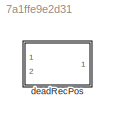
MODEL slx_7a1ffe9e2d31
KIND library
CONFIG AbsTol = auto
CONFIG EnableMultiTasking = off
CONFIG FixedStep = auto
CONFIG MaxStep = auto
CONFIG MinStep = auto
CONFIG RelTol = 1e-3
CONFIG SampleTimeConstraint = Unconstrained
CONFIG SolverName = VariableStepAuto
CONFIG StartTime = 0.0
CONFIG StopTime = 10.0
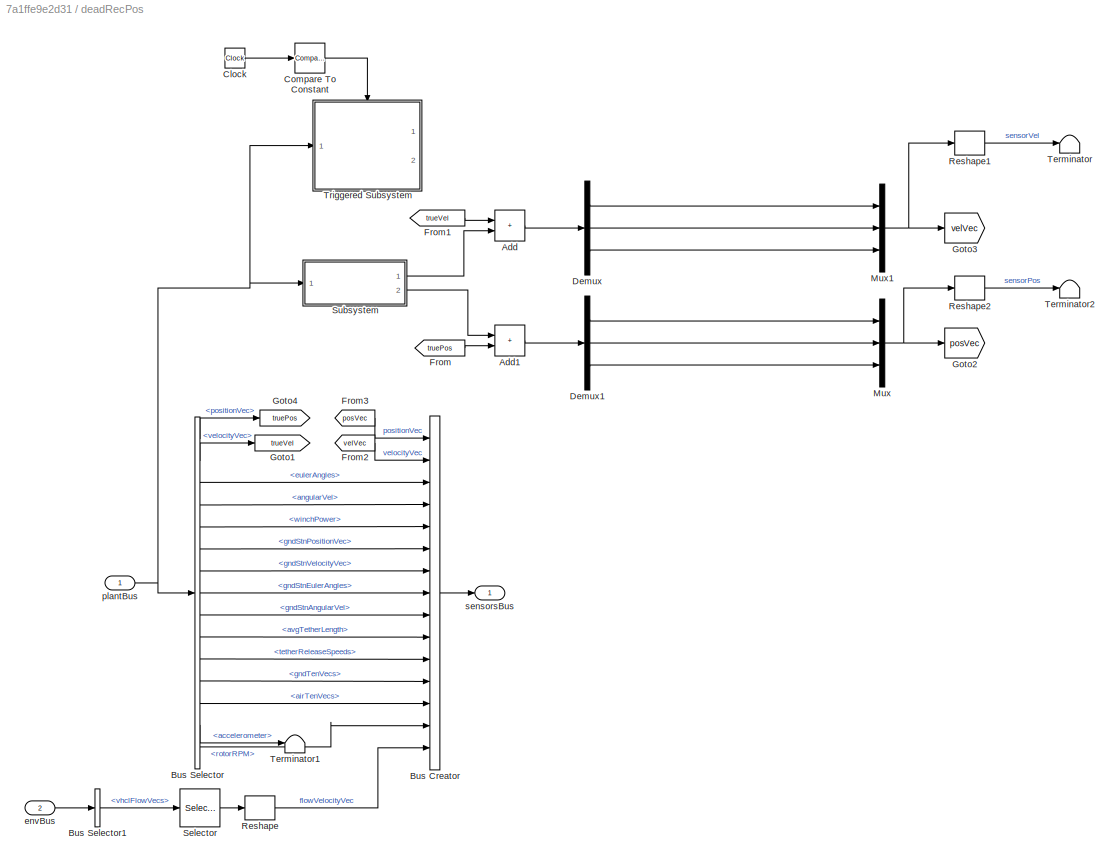
BLOCK [SubSystem] deadRecPos
  InitFcn = initializeBussesFromBlock(gcb)
  LoadFcn = initializeBussesFromBlock(gcb)
  Ports = [2, 1]
  RequestExecContextInheritance = off
  StartFcn = initializeBussesFromBlock(gcb)
BLOCK [Sum] deadRecPos/Add
  IconShape = rectangular
  Ports = [2, 1]
BLOCK [Sum] deadRecPos/Add1
  IconShape = rectangular
  Ports = [2, 1]
BLOCK [BusCreator] deadRecPos/Bus Creator
  DisplayOption = bar
  InheritFromInputs = on
  Inputs = 15
  NonVirtualBus = on
  OutDataTypeStr = Bus: sensorsBus
  Ports = [15, 1]
BLOCK [BusSelector] deadRecPos/Bus Selector
  OutputSignals = positionVec,velocityVec,eulerAngles,angularVel,winchPower,gndStnPositionVec,gndStnVelocityVec,gndStnEulerAngles,gndStnAngularVel,avgTetherLength,tetherReleaseSpeeds,gndTenVecs,airTenVecs,accelerometer,rotorRPM
  Ports = [1, 15]
BLOCK [BusSelector] deadRecPos/Bus Selector1
  OutputSignals = vhclFlowVecs
  Ports = [1, 1]
BLOCK [Clock] deadRecPos/Clock
BLOCK [Reference] deadRecPos/Compare To Constant  REF=simulink/Logic and Bit
Operations/Compare
To Constant
  Ports = [1, 1]
  SourceBlock = simulink/Logic and Bit\nOperations/Compare\nTo Constant
  SourceProductBaseCode = SL
  SourceType = Compare To Constant
BLOCK [Demux] deadRecPos/Demux
  Outputs = 3
  Ports = [1, 3]
BLOCK [Demux] deadRecPos/Demux1
  Outputs = 3
  Ports = [1, 3]
BLOCK [From] deadRecPos/From
  GotoTag = truePos
BLOCK [From] deadRecPos/From1
  GotoTag = trueVel
BLOCK [From] deadRecPos/From2
  GotoTag = velVec
BLOCK [From] deadRecPos/From3
  GotoTag = posVec
BLOCK [Goto] deadRecPos/Goto1
  GotoTag = trueVel
BLOCK [Goto] deadRecPos/Goto2
  GotoTag = posVec
BLOCK [Goto] deadRecPos/Goto3
  GotoTag = velVec
BLOCK [Goto] deadRecPos/Goto4
  GotoTag = truePos
BLOCK [Mux] deadRecPos/Mux
  DisplayOption = bar
  Inputs = 3
  Ports = [3, 1]
BLOCK [Mux] deadRecPos/Mux1
  DisplayOption = bar
  Inputs = 3
  Ports = [3, 1]
BLOCK [Reshape] deadRecPos/Reshape
  OutputDimensionality = Column vector (2-D)
  Ports = [1, 1]
BLOCK [Reshape] deadRecPos/Reshape1
  OutputDimensionality = Column vector (2-D)
  Ports = [1, 1]
BLOCK [Reshape] deadRecPos/Reshape2
  OutputDimensionality = Column vector (2-D)
  Ports = [1, 1]
BLOCK [Selector] deadRecPos/Selector
  IndexOptions = Select all,Index vector (dialog)
  Indices = [1 3],1
  InputPortWidth = 3
  NumberOfDimensions = 2
  OutputSizes = 1,1
  Ports = [1, 1]
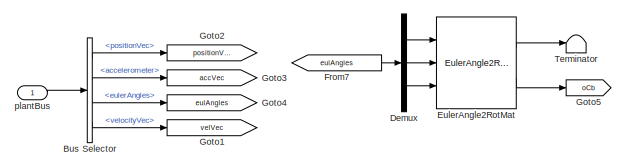
[diagram: deadRecPos/Subsystem - part 1/3, top center region]
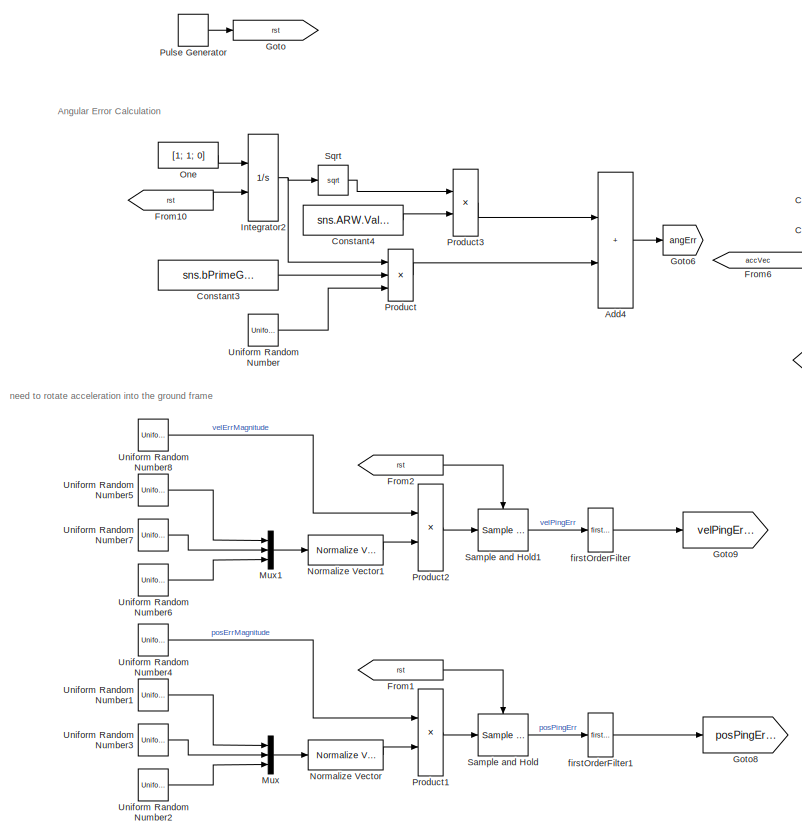
[diagram: deadRecPos/Subsystem - part 2/3, bottom left region]
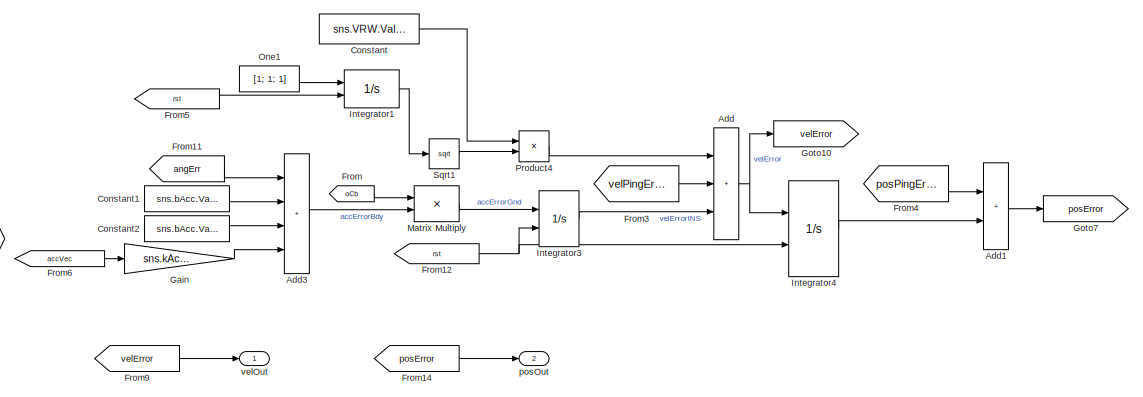
[diagram: deadRecPos/Subsystem - part 3/3, middle right region]
BLOCK [SubSystem] deadRecPos/Subsystem
  Ports = [1, 2]
  RequestExecContextInheritance = off
BLOCK [Sum] deadRecPos/Subsystem/Add
  IconShape = rectangular
  Inputs = +++
  Ports = [3, 1]
BLOCK [Sum] deadRecPos/Subsystem/Add1
  IconShape = rectangular
  Ports = [2, 1]
BLOCK [Sum] deadRecPos/Subsystem/Add3
  IconShape = rectangular
  Inputs = ++++
  Ports = [4, 1]
BLOCK [Sum] deadRecPos/Subsystem/Add4
  IconShape = rectangular
  Ports = [2, 1]
BLOCK [BusSelector] deadRecPos/Subsystem/Bus Selector
  OutputSignals = positionVec,accelerometer,eulerAngles,velocityVec
  Ports = [1, 4]
BLOCK [Constant] deadRecPos/Subsystem/Constant
  Value = sns.VRW.Value*3
BLOCK [Constant] deadRecPos/Subsystem/Constant1
  Value = sns.bAcc.Value
BLOCK [Constant] deadRecPos/Subsystem/Constant2
  Value = sns.bAcc.Value
BLOCK [Constant] deadRecPos/Subsystem/Constant3
  Value = sns.bPrimeGyro.Value
BLOCK [Constant] deadRecPos/Subsystem/Constant4
  Value = sns.ARW.Value*pi/180
BLOCK [Demux] deadRecPos/Subsystem/Demux
  Outputs = 3
  Ports = [1, 3]
BLOCK [Reference] deadRecPos/Subsystem/EulerAngle2RotMat  REF=eulAng2RotMat_ul/EulerAngle2RotMat
  Ports = [3, 2]
  SourceBlock = eulAng2RotMat_ul/EulerAngle2RotMat
  SourceType = SubSystem
BLOCK [From] deadRecPos/Subsystem/From
  GotoTag = oCb
BLOCK [From] deadRecPos/Subsystem/From1
  GotoTag = rst
BLOCK [From] deadRecPos/Subsystem/From10
  GotoTag = rst
BLOCK [From] deadRecPos/Subsystem/From11
  GotoTag = angErr
BLOCK [From] deadRecPos/Subsystem/From12
  GotoTag = rst
BLOCK [From] deadRecPos/Subsystem/From14
  GotoTag = posError
BLOCK [From] deadRecPos/Subsystem/From2
  GotoTag = rst
BLOCK [From] deadRecPos/Subsystem/From3
  GotoTag = velPingError
BLOCK [From] deadRecPos/Subsystem/From4
  GotoTag = posPingError
BLOCK [From] deadRecPos/Subsystem/From5
  GotoTag = rst
BLOCK [From] deadRecPos/Subsystem/From6
  GotoTag = accVec
BLOCK [From] deadRecPos/Subsystem/From7
  GotoTag = eulAngles
BLOCK [From] deadRecPos/Subsystem/From9
  GotoTag = velError
BLOCK [Gain] deadRecPos/Subsystem/Gain
  Gain = sns.kAcc.Value
BLOCK [Goto] deadRecPos/Subsystem/Goto
  GotoTag = rst
BLOCK [Goto] deadRecPos/Subsystem/Goto1
  GotoTag = velVec
BLOCK [Goto] deadRecPos/Subsystem/Goto10
  GotoTag = velError
BLOCK [Goto] deadRecPos/Subsystem/Goto2
  GotoTag = positionVec
BLOCK [Goto] deadRecPos/Subsystem/Goto3
  GotoTag = accVec
BLOCK [Goto] deadRecPos/Subsystem/Goto4
  GotoTag = eulAngles
BLOCK [Goto] deadRecPos/Subsystem/Goto5
  GotoTag = oCb
BLOCK [Goto] deadRecPos/Subsystem/Goto6
  GotoTag = angErr
BLOCK [Goto] deadRecPos/Subsystem/Goto7
  GotoTag = posError
BLOCK [Goto] deadRecPos/Subsystem/Goto8
  GotoTag = posPingError
BLOCK [Goto] deadRecPos/Subsystem/Goto9
  GotoTag = velPingError
BLOCK [Integrator] deadRecPos/Subsystem/Integrator1
  ExternalReset = rising
  Ports = [2, 1]
BLOCK [Integrator] deadRecPos/Subsystem/Integrator2
  ExternalReset = rising
  Ports = [2, 1]
BLOCK [Integrator] deadRecPos/Subsystem/Integrator3
  ExternalReset = rising
  Ports = [2, 1]
BLOCK [Integrator] deadRecPos/Subsystem/Integrator4
  ExternalReset = rising
  Ports = [2, 1]
BLOCK [Product] deadRecPos/Subsystem/Matrix Multiply
  Multiplication = Matrix(*)
  Ports = [2, 1]
BLOCK [Mux] deadRecPos/Subsystem/Mux
  DisplayOption = bar
  Inputs = 3
  Ports = [3, 1]
BLOCK [Mux] deadRecPos/Subsystem/Mux1
  DisplayOption = bar
  Inputs = 3
  Ports = [3, 1]
BLOCK [Reference] deadRecPos/Subsystem/Normalize Vector  REF=vrlib/Utilities/Normalize Vector
  Ports = [1, 1]
  SourceBlock = vrlib/Utilities/Normalize Vector
  SourceProductBaseCode = SL
  SourceType = Normalize Vector
BLOCK [Reference] deadRecPos/Subsystem/Normalize Vector1  REF=vrlib/Utilities/Normalize Vector
  Ports = [1, 1]
  SourceBlock = vrlib/Utilities/Normalize Vector
  SourceProductBaseCode = SL
  SourceType = Normalize Vector
BLOCK [Constant] deadRecPos/Subsystem/One
  OutDataTypeStr = Inherit: Inherit via back propagation
  Value = [1; 1; 0]
BLOCK [Constant] deadRecPos/Subsystem/One1
  OutDataTypeStr = Inherit: Inherit via back propagation
  Value = [1; 1; 1]
BLOCK [Product] deadRecPos/Subsystem/Product
  Inputs = 3
  Ports = [3, 1]
BLOCK [Product] deadRecPos/Subsystem/Product1
  Ports = [2, 1]
BLOCK [Product] deadRecPos/Subsystem/Product2
  Ports = [2, 1]
BLOCK [Product] deadRecPos/Subsystem/Product3
  Ports = [2, 1]
BLOCK [Product] deadRecPos/Subsystem/Product4
  Ports = [2, 1]
BLOCK [DiscretePulseGenerator] deadRecPos/Subsystem/Pulse Generator
  Period = (sns.gndTruthFreq.Value/(2*pi))^-1
  Ports = [0, 1]
  PulseType = Time based
  PulseWidth = 5
BLOCK [Reference] deadRecPos/Subsystem/Sample and Hold  REF=dspsigops/Sample
and Hold
  Ports = [1, 1, 0, 1]
  SourceBlock = dspsigops/Sample\nand Hold
  SourceProductBaseCode = DS
  SourceType = Sample and Hold
BLOCK [Reference] deadRecPos/Subsystem/Sample and Hold1  REF=dspsigops/Sample
and Hold
  Ports = [1, 1, 0, 1]
  SourceBlock = dspsigops/Sample\nand Hold
  SourceProductBaseCode = DS
  SourceType = Sample and Hold
BLOCK [Sqrt] deadRecPos/Subsystem/Sqrt
BLOCK [Sqrt] deadRecPos/Subsystem/Sqrt1
BLOCK [Terminator] deadRecPos/Subsystem/Terminator
BLOCK [UniformRandomNumber] deadRecPos/Subsystem/Uniform Random Number
  Minimum = 0
BLOCK [UniformRandomNumber] deadRecPos/Subsystem/Uniform Random Number1
BLOCK [UniformRandomNumber] deadRecPos/Subsystem/Uniform Random Number2
  Seed = 78654
BLOCK [UniformRandomNumber] deadRecPos/Subsystem/Uniform Random Number3
  Seed = 2459
BLOCK [UniformRandomNumber] deadRecPos/Subsystem/Uniform Random Number4
  Maximum = sns.posErrMag.Value
  Minimum = 0
BLOCK [UniformRandomNumber] deadRecPos/Subsystem/Uniform Random Number5
  Seed = 1954
BLOCK [UniformRandomNumber] deadRecPos/Subsystem/Uniform Random Number6
  Seed = 3
BLOCK [UniformRandomNumber] deadRecPos/Subsystem/Uniform Random Number7
  Seed = 549
BLOCK [UniformRandomNumber] deadRecPos/Subsystem/Uniform Random Number8
  Maximum = sns.velErrMag.Value
  Minimum = 0
BLOCK [Reference] deadRecPos/Subsystem/firstOrderFilter  REF=firstOrderFilter_ul/firstOrderFilter
  Ports = [1, 1]
  SourceBlock = firstOrderFilter_ul/firstOrderFilter
BLOCK [Reference] deadRecPos/Subsystem/firstOrderFilter1  REF=firstOrderFilter_ul/firstOrderFilter
  Ports = [1, 1]
  SourceBlock = firstOrderFilter_ul/firstOrderFilter
BLOCK [Inport] deadRecPos/Subsystem/plantBus
BLOCK [Outport] deadRecPos/Subsystem/posOut
  Port = 2
BLOCK [Outport] deadRecPos/Subsystem/velOut
BLOCK [Terminator] deadRecPos/Terminator
BLOCK [Terminator] deadRecPos/Terminator1
BLOCK [Terminator] deadRecPos/Terminator2
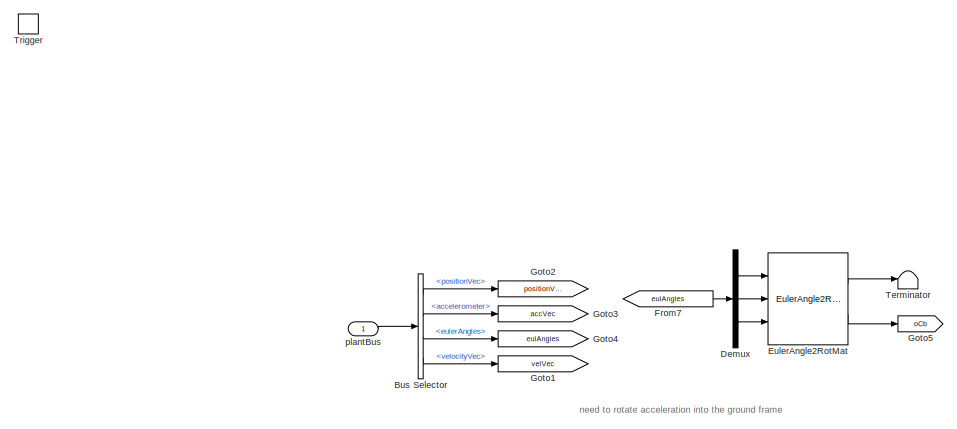
[diagram: deadRecPos/Triggered Subsystem - part 1/3, top left region]
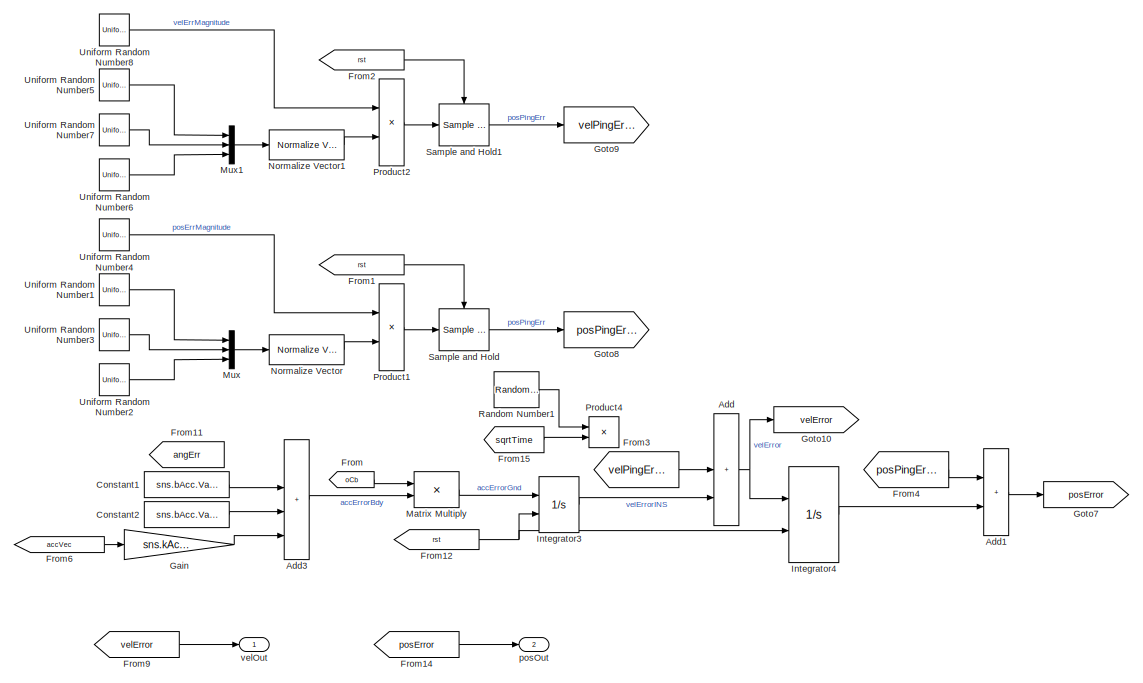
[diagram: deadRecPos/Triggered Subsystem - part 2/3, bottom right region]
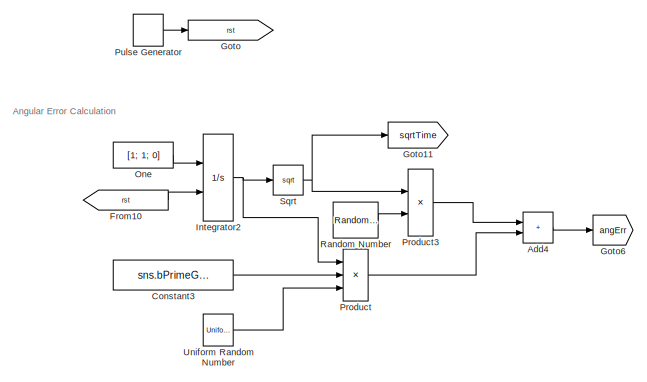
[diagram: deadRecPos/Triggered Subsystem - part 3/3, bottom left region]
BLOCK [SubSystem] deadRecPos/Triggered Subsystem
  Commented = on
  Ports = [1, 2, 0, 1]
  RequestExecContextInheritance = off
  TreatAsAtomicUnit = on
BLOCK [Sum] deadRecPos/Triggered Subsystem/Add
  IconShape = rectangular
  Inputs = +++
  Ports = [3, 1]
BLOCK [Sum] deadRecPos/Triggered Subsystem/Add1
  IconShape = rectangular
  Ports = [2, 1]
BLOCK [Sum] deadRecPos/Triggered Subsystem/Add3
  IconShape = rectangular
  Inputs = ++++
  Ports = [4, 1]
BLOCK [Sum] deadRecPos/Triggered Subsystem/Add4
  IconShape = rectangular
  Ports = [2, 1]
BLOCK [BusSelector] deadRecPos/Triggered Subsystem/Bus Selector
  OutputSignals = positionVec,accelerometer,eulerAngles,velocityVec
  Ports = [1, 4]
BLOCK [Constant] deadRecPos/Triggered Subsystem/Constant1
  Value = sns.bAcc.Value
BLOCK [Constant] deadRecPos/Triggered Subsystem/Constant2
  Value = sns.bAcc.Value
BLOCK [Constant] deadRecPos/Triggered Subsystem/Constant3
  Value = sns.bPrimeGyro.Value
BLOCK [Demux] deadRecPos/Triggered Subsystem/Demux
  Outputs = 3
  Ports = [1, 3]
BLOCK [Reference] deadRecPos/Triggered Subsystem/EulerAngle2RotMat  REF=eulAng2RotMat_ul/EulerAngle2RotMat
  Ports = [3, 2]
  SourceBlock = eulAng2RotMat_ul/EulerAngle2RotMat
  SourceType = SubSystem
BLOCK [From] deadRecPos/Triggered Subsystem/From
  GotoTag = oCb
BLOCK [From] deadRecPos/Triggered Subsystem/From1
  GotoTag = rst
BLOCK [From] deadRecPos/Triggered Subsystem/From10
  GotoTag = rst
BLOCK [From] deadRecPos/Triggered Subsystem/From11
  GotoTag = angErr
BLOCK [From] deadRecPos/Triggered Subsystem/From12
  GotoTag = rst
BLOCK [From] deadRecPos/Triggered Subsystem/From14
  GotoTag = posError
BLOCK [From] deadRecPos/Triggered Subsystem/From15
  GotoTag = sqrtTime
BLOCK [From] deadRecPos/Triggered Subsystem/From2
  GotoTag = rst
BLOCK [From] deadRecPos/Triggered Subsystem/From3
  GotoTag = velPingError
BLOCK [From] deadRecPos/Triggered Subsystem/From4
  GotoTag = posPingError
BLOCK [From] deadRecPos/Triggered Subsystem/From6
  GotoTag = accVec
BLOCK [From] deadRecPos/Triggered Subsystem/From7
  GotoTag = eulAngles
BLOCK [From] deadRecPos/Triggered Subsystem/From9
  GotoTag = velError
BLOCK [Gain] deadRecPos/Triggered Subsystem/Gain
  Gain = sns.kAcc.Value
BLOCK [Goto] deadRecPos/Triggered Subsystem/Goto
  GotoTag = rst
BLOCK [Goto] deadRecPos/Triggered Subsystem/Goto1
  GotoTag = velVec
BLOCK [Goto] deadRecPos/Triggered Subsystem/Goto10
  GotoTag = velError
BLOCK [Goto] deadRecPos/Triggered Subsystem/Goto11
  GotoTag = sqrtTime
BLOCK [Goto] deadRecPos/Triggered Subsystem/Goto2
  GotoTag = positionVec
BLOCK [Goto] deadRecPos/Triggered Subsystem/Goto3
  GotoTag = accVec
BLOCK [Goto] deadRecPos/Triggered Subsystem/Goto4
  GotoTag = eulAngles
BLOCK [Goto] deadRecPos/Triggered Subsystem/Goto5
  GotoTag = oCb
BLOCK [Goto] deadRecPos/Triggered Subsystem/Goto6
  GotoTag = angErr
BLOCK [Goto] deadRecPos/Triggered Subsystem/Goto7
  GotoTag = posError
BLOCK [Goto] deadRecPos/Triggered Subsystem/Goto8
  GotoTag = posPingError
BLOCK [Goto] deadRecPos/Triggered Subsystem/Goto9
  GotoTag = velPingError
BLOCK [Integrator] deadRecPos/Triggered Subsystem/Integrator2
  ExternalReset = rising
  Ports = [2, 1]
BLOCK [Integrator] deadRecPos/Triggered Subsystem/Integrator3
  ExternalReset = rising
  Ports = [2, 1]
BLOCK [Integrator] deadRecPos/Triggered Subsystem/Integrator4
  ExternalReset = rising
  Ports = [2, 1]
BLOCK [Product] deadRecPos/Triggered Subsystem/Matrix Multiply
  Multiplication = Matrix(*)
  Ports = [2, 1]
BLOCK [Mux] deadRecPos/Triggered Subsystem/Mux
  DisplayOption = bar
  Inputs = 3
  Ports = [3, 1]
BLOCK [Mux] deadRecPos/Triggered Subsystem/Mux1
  DisplayOption = bar
  Inputs = 3
  Ports = [3, 1]
BLOCK [Reference] deadRecPos/Triggered Subsystem/Normalize Vector  REF=vrlib/Utilities/Normalize Vector
  Ports = [1, 1]
  SourceBlock = vrlib/Utilities/Normalize Vector
  SourceProductBaseCode = SL
  SourceType = Normalize Vector
BLOCK [Reference] deadRecPos/Triggered Subsystem/Normalize Vector1  REF=vrlib/Utilities/Normalize Vector
  Ports = [1, 1]
  SourceBlock = vrlib/Utilities/Normalize Vector
  SourceProductBaseCode = SL
  SourceType = Normalize Vector
BLOCK [Constant] deadRecPos/Triggered Subsystem/One
  OutDataTypeStr = Inherit: Inherit via back propagation
  Value = [1; 1; 0]
BLOCK [Product] deadRecPos/Triggered Subsystem/Product
  Inputs = 3
  Ports = [3, 1]
BLOCK [Product] deadRecPos/Triggered Subsystem/Product1
  Ports = [2, 1]
BLOCK [Product] deadRecPos/Triggered Subsystem/Product2
  Ports = [2, 1]
BLOCK [Product] deadRecPos/Triggered Subsystem/Product3
  Ports = [2, 1]
BLOCK [Product] deadRecPos/Triggered Subsystem/Product4
  Ports = [2, 1]
BLOCK [DiscretePulseGenerator] deadRecPos/Triggered Subsystem/Pulse Generator
  Period = (sns.gndTruthFreq.Value/(2*pi))^-1
  Ports = [0, 1]
  PulseType = Time based
  PulseWidth = 5
BLOCK [RandomNumber] deadRecPos/Triggered Subsystem/Random Number
  Variance = (sns.ARW.Value*sqrt(sns.gndTruthFreq.Value/(2*pi)))^2
BLOCK [RandomNumber] deadRecPos/Triggered Subsystem/Random Number1
  Variance = (sns.VRW.Value*sqrt(sns.gndTruthFreq.Value/(2*pi)))^2
BLOCK [Reference] deadRecPos/Triggered Subsystem/Sample and Hold  REF=dspsigops/Sample
and Hold
  Ports = [1, 1, 0, 1]
  SourceBlock = dspsigops/Sample\nand Hold
  SourceProductBaseCode = DS
  SourceType = Sample and Hold
BLOCK [Reference] deadRecPos/Triggered Subsystem/Sample and Hold1  REF=dspsigops/Sample
and Hold
  Ports = [1, 1, 0, 1]
  SourceBlock = dspsigops/Sample\nand Hold
  SourceProductBaseCode = DS
  SourceType = Sample and Hold
BLOCK [Sqrt] deadRecPos/Triggered Subsystem/Sqrt
BLOCK [Terminator] deadRecPos/Triggered Subsystem/Terminator
BLOCK [TriggerPort] deadRecPos/Triggered Subsystem/Trigger
  Ports = []
  StatesWhenEnabling = held
  VariantControl = Variant
BLOCK [UniformRandomNumber] deadRecPos/Triggered Subsystem/Uniform Random Number
  Minimum = 0
BLOCK [UniformRandomNumber] deadRecPos/Triggered Subsystem/Uniform Random Number1
  Minimum = 0
BLOCK [UniformRandomNumber] deadRecPos/Triggered Subsystem/Uniform Random Number2
  Minimum = 0
  Seed = 78654
BLOCK [UniformRandomNumber] deadRecPos/Triggered Subsystem/Uniform Random Number3
  Minimum = 0
  Seed = 2459
BLOCK [UniformRandomNumber] deadRecPos/Triggered Subsystem/Uniform Random Number4
  Maximum = sns.posErrMag.Value
  Minimum = 0
BLOCK [UniformRandomNumber] deadRecPos/Triggered Subsystem/Uniform Random Number5
  Minimum = 0
  Seed = 1954
BLOCK [UniformRandomNumber] deadRecPos/Triggered Subsystem/Uniform Random Number6
  Minimum = 0
  Seed = 3
BLOCK [UniformRandomNumber] deadRecPos/Triggered Subsystem/Uniform Random Number7
  Minimum = 0
  Seed = 549
BLOCK [UniformRandomNumber] deadRecPos/Triggered Subsystem/Uniform Random Number8
  Maximum = sns.velErrMag.Value
  Minimum = 0
BLOCK [Inport] deadRecPos/Triggered Subsystem/plantBus
BLOCK [Outport] deadRecPos/Triggered Subsystem/posOut
  Port = 2
BLOCK [Outport] deadRecPos/Triggered Subsystem/velOut
BLOCK [Inport] deadRecPos/envBus
  OutDataTypeStr = Bus: envBus
  Port = 2
BLOCK [Inport] deadRecPos/plantBus
  OutDataTypeStr = Bus: plantBus
BLOCK [Outport] deadRecPos/sensorsBus
  OutDataTypeStr = Bus: sensorsBus
  VectorParamsAs1DForOutWhenUnconnected = off
ANNOTATION deadRecPos/Subsystem: Angular Error Calculation
ANNOTATION deadRecPos/Subsystem: need to rotate acceleration into the ground frame
ANNOTATION deadRecPos/Triggered Subsystem: Angular Error Calculation
ANNOTATION deadRecPos/Triggered Subsystem: need to rotate acceleration into the ground frame
LINE deadRecPos/Add1:1 -> deadRecPos/Demux1:1
LINE deadRecPos/Add:1 -> deadRecPos/Demux:1
LINE deadRecPos/Bus Creator:1 -> deadRecPos/sensorsBus:1
LINE deadRecPos/Bus Selector1:1 -> deadRecPos/Selector:1
LINE deadRecPos/Bus Selector:1 -> deadRecPos/Goto4:1
LINE deadRecPos/Bus Selector:10 -> deadRecPos/Bus Creator:10
LINE deadRecPos/Bus Selector:11 -> deadRecPos/Bus Creator:11
LINE deadRecPos/Bus Selector:12 -> deadRecPos/Bus Creator:12
LINE deadRecPos/Bus Selector:13 -> deadRecPos/Bus Creator:13
LINE deadRecPos/Bus Selector:14 -> deadRecPos/Terminator1:1
LINE deadRecPos/Bus Selector:15 -> deadRecPos/Bus Creator:14
LINE deadRecPos/Bus Selector:2 -> deadRecPos/Goto1:1
LINE deadRecPos/Bus Selector:3 -> deadRecPos/Bus Creator:3
LINE deadRecPos/Bus Selector:4 -> deadRecPos/Bus Creator:4
LINE deadRecPos/Bus Selector:5 -> deadRecPos/Bus Creator:5
LINE deadRecPos/Bus Selector:6 -> deadRecPos/Bus Creator:6
LINE deadRecPos/Bus Selector:7 -> deadRecPos/Bus Creator:7
LINE deadRecPos/Bus Selector:8 -> deadRecPos/Bus Creator:8
LINE deadRecPos/Bus Selector:9 -> deadRecPos/Bus Creator:9
LINE deadRecPos/Clock:1 -> deadRecPos/Compare To Constant:1
LINE deadRecPos/Compare To Constant:1 -> deadRecPos/Triggered Subsystem:trigger
LINE deadRecPos/Demux1:1 -> deadRecPos/Mux:1
LINE deadRecPos/Demux1:2 -> deadRecPos/Mux:2
LINE deadRecPos/Demux1:3 -> deadRecPos/Mux:3
LINE deadRecPos/Demux:1 -> deadRecPos/Mux1:1
LINE deadRecPos/Demux:2 -> deadRecPos/Mux1:2
LINE deadRecPos/Demux:3 -> deadRecPos/Mux1:3
LINE deadRecPos/From1:1 -> deadRecPos/Add:1
LINE deadRecPos/From2:1 -> deadRecPos/Bus Creator:2
LINE deadRecPos/From3:1 -> deadRecPos/Bus Creator:1
LINE deadRecPos/From:1 -> deadRecPos/Add1:2
NET deadRecPos/Mux1:1 -> deadRecPos/Goto3:1, deadRecPos/Reshape1:1
NET deadRecPos/Mux:1 -> deadRecPos/Goto2:1, deadRecPos/Reshape2:1
LINE deadRecPos/Reshape1:1 -> deadRecPos/Terminator:1
LINE deadRecPos/Reshape2:1 -> deadRecPos/Terminator2:1
LINE deadRecPos/Reshape:1 -> deadRecPos/Bus Creator:15
LINE deadRecPos/Selector:1 -> deadRecPos/Reshape:1
LINE deadRecPos/Subsystem/Add1:1 -> deadRecPos/Subsystem/Goto7:1
LINE deadRecPos/Subsystem/Add3:1 -> deadRecPos/Subsystem/Matrix Multiply:2
LINE deadRecPos/Subsystem/Add4:1 -> deadRecPos/Subsystem/Goto6:1
NET deadRecPos/Subsystem/Add:1 -> deadRecPos/Subsystem/Goto10:1, deadRecPos/Subsystem/Integrator4:1
LINE deadRecPos/Subsystem/Bus Selector:1 -> deadRecPos/Subsystem/Goto2:1
LINE deadRecPos/Subsystem/Bus Selector:2 -> deadRecPos/Subsystem/Goto3:1
LINE deadRecPos/Subsystem/Bus Selector:3 -> deadRecPos/Subsystem/Goto4:1
LINE deadRecPos/Subsystem/Bus Selector:4 -> deadRecPos/Subsystem/Goto1:1
LINE deadRecPos/Subsystem/Constant1:1 -> deadRecPos/Subsystem/Add3:2
LINE deadRecPos/Subsystem/Constant2:1 -> deadRecPos/Subsystem/Add3:3
LINE deadRecPos/Subsystem/Constant3:1 -> deadRecPos/Subsystem/Product:2
LINE deadRecPos/Subsystem/Constant4:1 -> deadRecPos/Subsystem/Product3:2
LINE deadRecPos/Subsystem/Constant:1 -> deadRecPos/Subsystem/Product4:1
LINE deadRecPos/Subsystem/Demux:1 -> deadRecPos/Subsystem/EulerAngle2RotMat:1
LINE deadRecPos/Subsystem/Demux:2 -> deadRecPos/Subsystem/EulerAngle2RotMat:2
LINE deadRecPos/Subsystem/Demux:3 -> deadRecPos/Subsystem/EulerAngle2RotMat:3
LINE deadRecPos/Subsystem/EulerAngle2RotMat:1 -> deadRecPos/Subsystem/Terminator:1
LINE deadRecPos/Subsystem/EulerAngle2RotMat:2 -> deadRecPos/Subsystem/Goto5:1
LINE deadRecPos/Subsystem/From10:1 -> deadRecPos/Subsystem/Integrator2:2
LINE deadRecPos/Subsystem/From11:1 -> deadRecPos/Subsystem/Add3:1
NET deadRecPos/Subsystem/From12:1 -> deadRecPos/Subsystem/Integrator3:2, deadRecPos/Subsystem/Integrator4:2
LINE deadRecPos/Subsystem/From14:1 -> deadRecPos/Subsystem/posOut:1
LINE deadRecPos/Subsystem/From1:1 -> deadRecPos/Subsystem/Sample and Hold:trigger
LINE deadRecPos/Subsystem/From2:1 -> deadRecPos/Subsystem/Sample and Hold1:trigger
LINE deadRecPos/Subsystem/From3:1 -> deadRecPos/Subsystem/Add:2
LINE deadRecPos/Subsystem/From4:1 -> deadRecPos/Subsystem/Add1:1
LINE deadRecPos/Subsystem/From5:1 -> deadRecPos/Subsystem/Integrator1:2
LINE deadRecPos/Subsystem/From6:1 -> deadRecPos/Subsystem/Gain:1
LINE deadRecPos/Subsystem/From7:1 -> deadRecPos/Subsystem/Demux:1
LINE deadRecPos/Subsystem/From9:1 -> deadRecPos/Subsystem/velOut:1
LINE deadRecPos/Subsystem/From:1 -> deadRecPos/Subsystem/Matrix Multiply:1
LINE deadRecPos/Subsystem/Gain:1 -> deadRecPos/Subsystem/Add3:4
LINE deadRecPos/Subsystem/Integrator1:1 -> deadRecPos/Subsystem/Sqrt1:1
NET deadRecPos/Subsystem/Integrator2:1 -> deadRecPos/Subsystem/Product:1, deadRecPos/Subsystem/Sqrt:1
LINE deadRecPos/Subsystem/Integrator3:1 -> deadRecPos/Subsystem/Add:3
LINE deadRecPos/Subsystem/Integrator4:1 -> deadRecPos/Subsystem/Add1:2
LINE deadRecPos/Subsystem/Matrix Multiply:1 -> deadRecPos/Subsystem/Integrator3:1
LINE deadRecPos/Subsystem/Mux1:1 -> deadRecPos/Subsystem/Normalize Vector1:1
LINE deadRecPos/Subsystem/Mux:1 -> deadRecPos/Subsystem/Normalize Vector:1
LINE deadRecPos/Subsystem/Normalize Vector1:1 -> deadRecPos/Subsystem/Product2:2
LINE deadRecPos/Subsystem/Normalize Vector:1 -> deadRecPos/Subsystem/Product1:2
LINE deadRecPos/Subsystem/One1:1 -> deadRecPos/Subsystem/Integrator1:1
LINE deadRecPos/Subsystem/One:1 -> deadRecPos/Subsystem/Integrator2:1
LINE deadRecPos/Subsystem/Product1:1 -> deadRecPos/Subsystem/Sample and Hold:1
LINE deadRecPos/Subsystem/Product2:1 -> deadRecPos/Subsystem/Sample and Hold1:1
LINE deadRecPos/Subsystem/Product3:1 -> deadRecPos/Subsystem/Add4:1
LINE deadRecPos/Subsystem/Product4:1 -> deadRecPos/Subsystem/Add:1
LINE deadRecPos/Subsystem/Product:1 -> deadRecPos/Subsystem/Add4:2
LINE deadRecPos/Subsystem/Pulse Generator:1 -> deadRecPos/Subsystem/Goto:1
LINE deadRecPos/Subsystem/Sample and Hold1:1 -> deadRecPos/Subsystem/firstOrderFilter:1
LINE deadRecPos/Subsystem/Sample and Hold:1 -> deadRecPos/Subsystem/firstOrderFilter1:1
LINE deadRecPos/Subsystem/Sqrt1:1 -> deadRecPos/Subsystem/Product4:2
LINE deadRecPos/Subsystem/Sqrt:1 -> deadRecPos/Subsystem/Product3:1
LINE deadRecPos/Subsystem/Uniform Random Number1:1 -> deadRecPos/Subsystem/Mux:1
LINE deadRecPos/Subsystem/Uniform Random Number2:1 -> deadRecPos/Subsystem/Mux:3
LINE deadRecPos/Subsystem/Uniform Random Number3:1 -> deadRecPos/Subsystem/Mux:2
LINE deadRecPos/Subsystem/Uniform Random Number4:1 -> deadRecPos/Subsystem/Product1:1
LINE deadRecPos/Subsystem/Uniform Random Number5:1 -> deadRecPos/Subsystem/Mux1:1
LINE deadRecPos/Subsystem/Uniform Random Number6:1 -> deadRecPos/Subsystem/Mux1:3
LINE deadRecPos/Subsystem/Uniform Random Number7:1 -> deadRecPos/Subsystem/Mux1:2
LINE deadRecPos/Subsystem/Uniform Random Number8:1 -> deadRecPos/Subsystem/Product2:1
LINE deadRecPos/Subsystem/Uniform Random Number:1 -> deadRecPos/Subsystem/Product:3
LINE deadRecPos/Subsystem/firstOrderFilter1:1 -> deadRecPos/Subsystem/Goto8:1
LINE deadRecPos/Subsystem/firstOrderFilter:1 -> deadRecPos/Subsystem/Goto9:1
LINE deadRecPos/Subsystem/plantBus:1 -> deadRecPos/Subsystem/Bus Selector:1
LINE deadRecPos/Subsystem:1 -> deadRecPos/Add:2
LINE deadRecPos/Subsystem:2 -> deadRecPos/Add1:1
LINE deadRecPos/Triggered Subsystem/Add1:1 -> deadRecPos/Triggered Subsystem/Goto7:1
LINE deadRecPos/Triggered Subsystem/Add3:1 -> deadRecPos/Triggered Subsystem/Matrix Multiply:2
LINE deadRecPos/Triggered Subsystem/Add4:1 -> deadRecPos/Triggered Subsystem/Goto6:1
NET deadRecPos/Triggered Subsystem/Add:1 -> deadRecPos/Triggered Subsystem/Goto10:1, deadRecPos/Triggered Subsystem/Integrator4:1
LINE deadRecPos/Triggered Subsystem/Bus Selector:1 -> deadRecPos/Triggered Subsystem/Goto2:1
LINE deadRecPos/Triggered Subsystem/Bus Selector:2 -> deadRecPos/Triggered Subsystem/Goto3:1
LINE deadRecPos/Triggered Subsystem/Bus Selector:3 -> deadRecPos/Triggered Subsystem/Goto4:1
LINE deadRecPos/Triggered Subsystem/Bus Selector:4 -> deadRecPos/Triggered Subsystem/Goto1:1
LINE deadRecPos/Triggered Subsystem/Constant1:1 -> deadRecPos/Triggered Subsystem/Add3:2
LINE deadRecPos/Triggered Subsystem/Constant2:1 -> deadRecPos/Triggered Subsystem/Add3:3
LINE deadRecPos/Triggered Subsystem/Constant3:1 -> deadRecPos/Triggered Subsystem/Product:2
LINE deadRecPos/Triggered Subsystem/Demux:1 -> deadRecPos/Triggered Subsystem/EulerAngle2RotMat:1
LINE deadRecPos/Triggered Subsystem/Demux:2 -> deadRecPos/Triggered Subsystem/EulerAngle2RotMat:2
LINE deadRecPos/Triggered Subsystem/Demux:3 -> deadRecPos/Triggered Subsystem/EulerAngle2RotMat:3
LINE deadRecPos/Triggered Subsystem/EulerAngle2RotMat:1 -> deadRecPos/Triggered Subsystem/Terminator:1
LINE deadRecPos/Triggered Subsystem/EulerAngle2RotMat:2 -> deadRecPos/Triggered Subsystem/Goto5:1
LINE deadRecPos/Triggered Subsystem/From10:1 -> deadRecPos/Triggered Subsystem/Integrator2:2
NET deadRecPos/Triggered Subsystem/From12:1 -> deadRecPos/Triggered Subsystem/Integrator3:2, deadRecPos/Triggered Subsystem/Integrator4:2
LINE deadRecPos/Triggered Subsystem/From14:1 -> deadRecPos/Triggered Subsystem/posOut:1
LINE deadRecPos/Triggered Subsystem/From15:1 -> deadRecPos/Triggered Subsystem/Product4:2
LINE deadRecPos/Triggered Subsystem/From1:1 -> deadRecPos/Triggered Subsystem/Sample and Hold:trigger
LINE deadRecPos/Triggered Subsystem/From2:1 -> deadRecPos/Triggered Subsystem/Sample and Hold1:trigger
LINE deadRecPos/Triggered Subsystem/From3:1 -> deadRecPos/Triggered Subsystem/Add:2
LINE deadRecPos/Triggered Subsystem/From4:1 -> deadRecPos/Triggered Subsystem/Add1:1
LINE deadRecPos/Triggered Subsystem/From6:1 -> deadRecPos/Triggered Subsystem/Gain:1
LINE deadRecPos/Triggered Subsystem/From7:1 -> deadRecPos/Triggered Subsystem/Demux:1
LINE deadRecPos/Triggered Subsystem/From9:1 -> deadRecPos/Triggered Subsystem/velOut:1
LINE deadRecPos/Triggered Subsystem/From:1 -> deadRecPos/Triggered Subsystem/Matrix Multiply:1
LINE deadRecPos/Triggered Subsystem/Gain:1 -> deadRecPos/Triggered Subsystem/Add3:4
NET deadRecPos/Triggered Subsystem/Integrator2:1 -> deadRecPos/Triggered Subsystem/Product:1, deadRecPos/Triggered Subsystem/Sqrt:1
LINE deadRecPos/Triggered Subsystem/Integrator3:1 -> deadRecPos/Triggered Subsystem/Add:3
LINE deadRecPos/Triggered Subsystem/Integrator4:1 -> deadRecPos/Triggered Subsystem/Add1:2
LINE deadRecPos/Triggered Subsystem/Matrix Multiply:1 -> deadRecPos/Triggered Subsystem/Integrator3:1
LINE deadRecPos/Triggered Subsystem/Mux1:1 -> deadRecPos/Triggered Subsystem/Normalize Vector1:1
LINE deadRecPos/Triggered Subsystem/Mux:1 -> deadRecPos/Triggered Subsystem/Normalize Vector:1
LINE deadRecPos/Triggered Subsystem/Normalize Vector1:1 -> deadRecPos/Triggered Subsystem/Product2:2
LINE deadRecPos/Triggered Subsystem/Normalize Vector:1 -> deadRecPos/Triggered Subsystem/Product1:2
LINE deadRecPos/Triggered Subsystem/One:1 -> deadRecPos/Triggered Subsystem/Integrator2:1
LINE deadRecPos/Triggered Subsystem/Product1:1 -> deadRecPos/Triggered Subsystem/Sample and Hold:1
LINE deadRecPos/Triggered Subsystem/Product2:1 -> deadRecPos/Triggered Subsystem/Sample and Hold1:1
LINE deadRecPos/Triggered Subsystem/Product3:1 -> deadRecPos/Triggered Subsystem/Add4:1
LINE deadRecPos/Triggered Subsystem/Product:1 -> deadRecPos/Triggered Subsystem/Add4:2
LINE deadRecPos/Triggered Subsystem/Pulse Generator:1 -> deadRecPos/Triggered Subsystem/Goto:1
LINE deadRecPos/Triggered Subsystem/Random Number1:1 -> deadRecPos/Triggered Subsystem/Product4:1
LINE deadRecPos/Triggered Subsystem/Random Number:1 -> deadRecPos/Triggered Subsystem/Product3:2
LINE deadRecPos/Triggered Subsystem/Sample and Hold1:1 -> deadRecPos/Triggered Subsystem/Goto9:1
LINE deadRecPos/Triggered Subsystem/Sample and Hold:1 -> deadRecPos/Triggered Subsystem/Goto8:1
NET deadRecPos/Triggered Subsystem/Sqrt:1 -> deadRecPos/Triggered Subsystem/Goto11:1, deadRecPos/Triggered Subsystem/Product3:1
LINE deadRecPos/Triggered Subsystem/Uniform Random Number1:1 -> deadRecPos/Triggered Subsystem/Mux:1
LINE deadRecPos/Triggered Subsystem/Uniform Random Number2:1 -> deadRecPos/Triggered Subsystem/Mux:3
LINE deadRecPos/Triggered Subsystem/Uniform Random Number3:1 -> deadRecPos/Triggered Subsystem/Mux:2
LINE deadRecPos/Triggered Subsystem/Uniform Random Number4:1 -> deadRecPos/Triggered Subsystem/Product1:1
LINE deadRecPos/Triggered Subsystem/Uniform Random Number5:1 -> deadRecPos/Triggered Subsystem/Mux1:1
LINE deadRecPos/Triggered Subsystem/Uniform Random Number6:1 -> deadRecPos/Triggered Subsystem/Mux1:3
LINE deadRecPos/Triggered Subsystem/Uniform Random Number7:1 -> deadRecPos/Triggered Subsystem/Mux1:2
LINE deadRecPos/Triggered Subsystem/Uniform Random Number8:1 -> deadRecPos/Triggered Subsystem/Product2:1
LINE deadRecPos/Triggered Subsystem/Uniform Random Number:1 -> deadRecPos/Triggered Subsystem/Product:3
LINE deadRecPos/Triggered Subsystem/plantBus:1 -> deadRecPos/Triggered Subsystem/Bus Selector:1
LINE deadRecPos/envBus:1 -> deadRecPos/Bus Selector1:1
NET deadRecPos/plantBus:1 -> deadRecPos/Bus Selector:1, deadRecPos/Subsystem:1, deadRecPos/Triggered Subsystem:1
note: NET lines group one-source signal fan-out (src -> all destinations, sorted); 1:1 wires keep LINE
